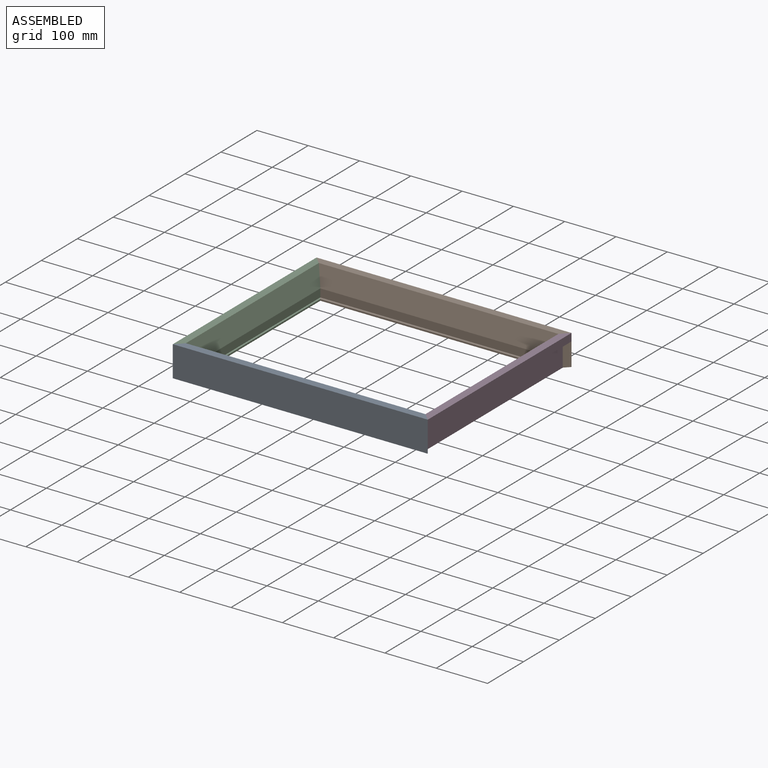
[diagram: assembled view]
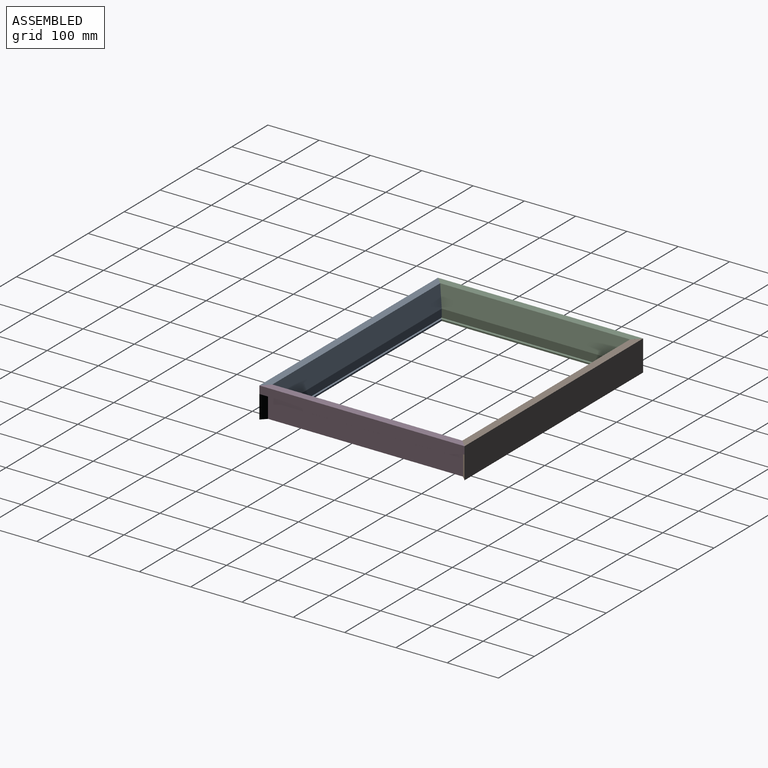
[diagram: assembled view, second angle]
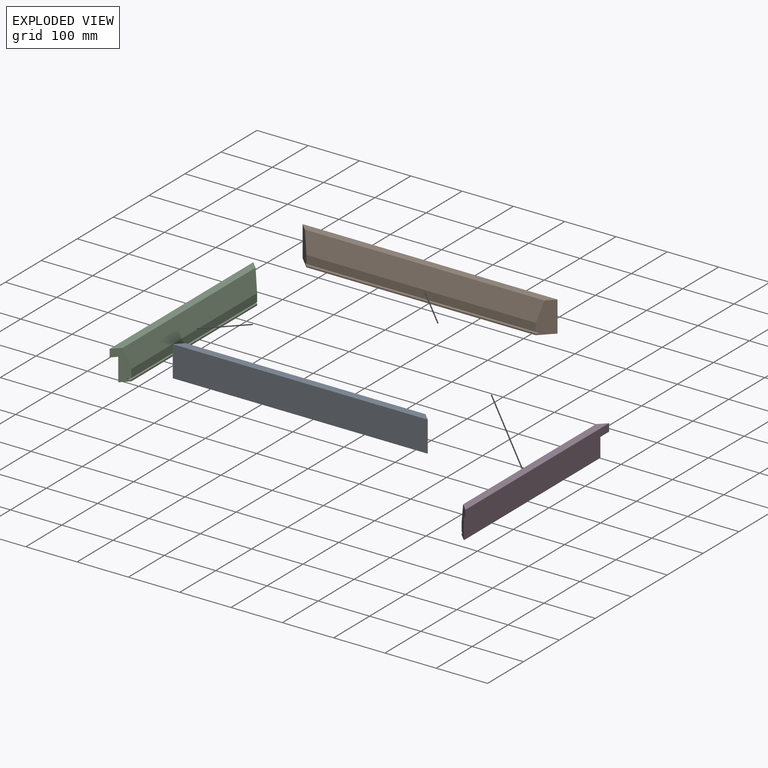
[diagram: exploded view]
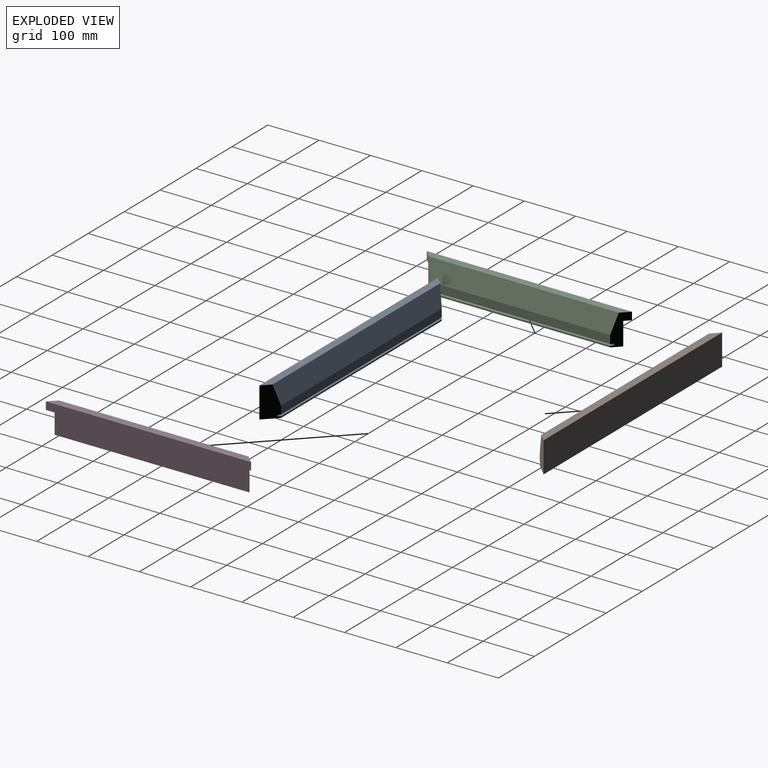
[diagram: exploded view, second angle]
ASSEMBLY  parts=4 mates=3
PART A: 11 faces, bbox 25x497x60 mm
  f0: plane 447x3mm, normal (1,0,0), area 1341mm2, adj f3,f4,f9,f10
  f1: plane 447x15.74mm, normal (1,0,0), area 7037.9mm2, adj f6,f7,f9,f10
  f2: plane 497x15mm, normal (0,0,1), area 7230mm2, adj f7,f8,f9,f10
  f3: plane 497x25mm, normal (0,0,-1), area 11800mm2, adj f0,f8,f9,f10
  f4: plane 457x5mm, normal (0,0,1), area 2260mm2, adj f0,f5,f9,f10
  f5: plane 457x3mm, normal (1,0,0), area 1371mm2, adj f4,f6,f9,f10
  f6: plane 457x5mm, normal (0,0,-1), area 2260mm2, adj f1,f5,f9,f10
  f7: plane 467x38.26mm, normal (0.97,0,0.25), area 18070.1mm2, adj f1,f2,f9,f10
  f8: plane 497x60mm, normal (-1,0,0), area 29820mm2, adj f2,f3,f9,f10
  f9: plane 60x25mm, normal (0.71,0.71,0), area 1829.6mm2, adj f0,f1,f2,f3,f4,f5,f6,f7
  f10: plane 60x25mm, normal (0.71,-0.71,0), area 1829.6mm2, adj f0,f1,f2,f3,f4,f5,f6,f7
PART B: same geometry as A
PART C: 13 faces, bbox 25x400x60 mm
  f0: plane 350x3mm, normal (1,0,0), area 1050mm2, adj f3,f9,f11,f12
  f1: plane 350x15.74mm, normal (1,0,0), area 5510.7mm2, adj f5,f6,f11,f12
  f2: plane 400x15mm, normal (0,0,1), area 5775mm2, adj f6,f10,f11,f12
  f3: plane 360x5mm, normal (0,0,1), area 1775mm2, adj f0,f4,f11,f12
  f4: plane 360x3mm, normal (1,0,0), area 1080mm2, adj f3,f5,f11,f12
  f5: plane 360x5mm, normal (0,0,-1), area 1775mm2, adj f1,f4,f11,f12
  f6: plane 370x38.26mm, normal (0.97,0,0.25), area 14234.6mm2, adj f1,f2,f11,f12
  f7: plane 400x10mm, normal (0,0,-1), area 3900mm2, adj f8,f10,f11,f12
  f8: plane 380x45mm, normal (-1,0,0), area 17100mm2, adj f7,f9,f11,f12
  f9: plane 380x15mm, normal (0,0,-1), area 5475mm2, adj f0,f8,f11,f12
  f10: plane 400x15mm, normal (-1,0,0), area 6000mm2, adj f2,f7,f11,f12
  f11: plane 60x25mm, normal (0.71,0.71,0), area 1193.2mm2, adj f0,f1,f2,f3,f4,f5,f6,f7
  f12: plane 60x25mm, normal (0.71,-0.71,0), area 1193.2mm2, adj f0,f1,f2,f3,f4,f5,f6,f7
PART D: same geometry as C
PLACE A rot(axis=(0,0,1),90deg) t=(-160.92,-348.47,0)mm
PLACE B rot(axis=(0,0,-1),90deg) t=(336.08,26.53,0)mm
PLACE C t=(-148.42,39.03,0)mm
PLACE D rot(axis=(0,0,1),180deg) t=(323.58,-360.97,0)mm
MATE fastened C.f12 <-> A.f9  axis (0.71,-0.71,0) through (-145.92,-345.97,30)mm
MATE fastened B.f9 <-> D.f12  axis (0.71,-0.71,0) through (321.08,24.03,30)mm
MATE fastened C.f11 <-> B.f10  axis (0.71,0.71,0) through (-145.92,24.03,30)mm
